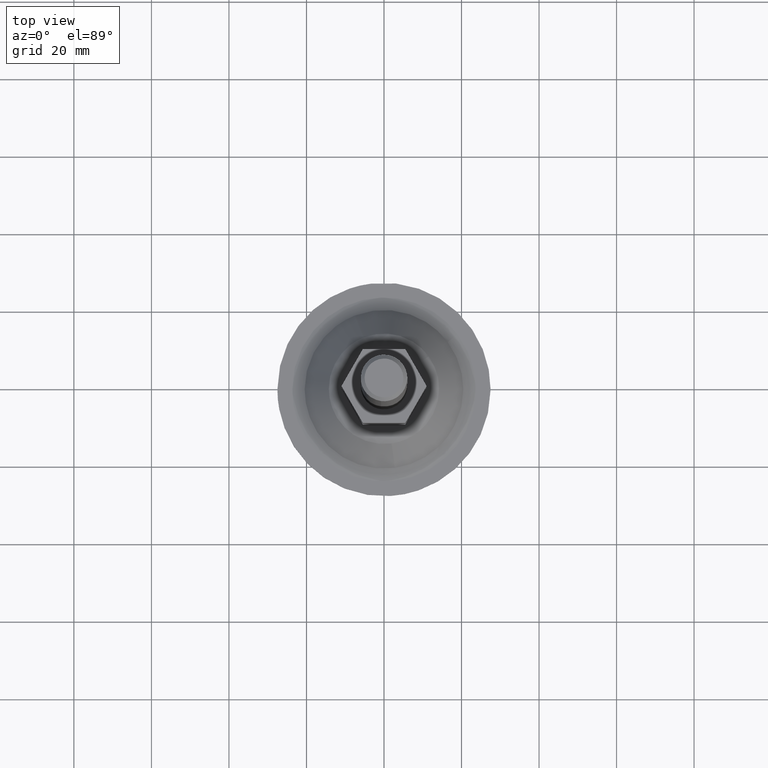
[diagram: clean part render]
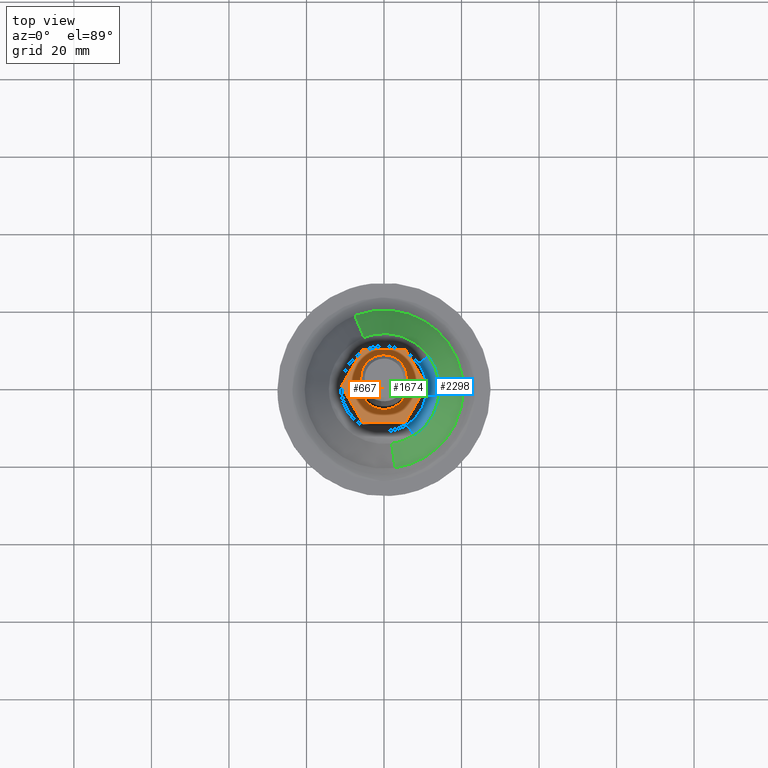
[diagram: same view with three faces highlighted in distinct colors, each labeled with its STEP entity id]
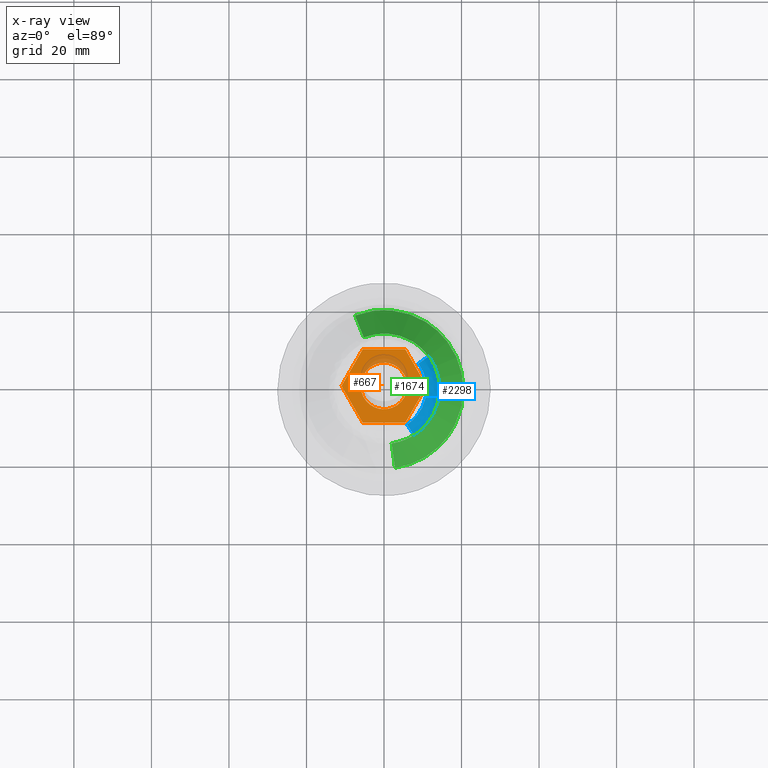
[diagram: x-ray of the same camera — body ghosted, the three highlighted faces saturated]
A machine part, top view with three faces highlighted in distinct colors.
The next image is the same camera in x-ray (body ghosted, the three faces saturated) — at least one of them is partly hidden behind the body in this view.
Their STEP definitions:

[orange] entity #667 — the highlighted face is a freeform B-spline surface patch.
#96=CARTESIAN_POINT('',(0.470754574464630,5.981504002391089,52.0));
#97=VERTEX_POINT('',#96);
#103=CARTESIAN_POINT('',(-6.0,0.0,52.0));
#104=VERTEX_POINT('',#103);
#105=CARTESIAN_POINT('',(0.470754574464630,5.981504002391089,52.0));
#106=CARTESIAN_POINT('',(0.235740642144029,6.0,52.0));
#107=CARTESIAN_POINT('',(0.0,6.0,52.0));
#108=CARTESIAN_POINT('',(-6.0,6.0,52.000000000000007));
#109=CARTESIAN_POINT('',(-6.0,0.0,52.0));
#117=(BOUNDED_CURVE()B_SPLINE_CURVE(2,(#105,#106,#107,#108,#109),.UNSPECIFIED.,.F.,.U.)B_SPLINE_CURVE_WITH_KNOTS((3,2,3),(0.736331300627175,0.750000000000000,1.0),.UNSPECIFIED.)CURVE()GEOMETRIC_REPRESENTATION_ITEM()RATIONAL_B_SPLINE_CURVE((0.969723356160146,0.983986122574799,1.0,0.707106781186548,1.0))REPRESENTATION_ITEM(''));
#118=EDGE_CURVE('',#97,#104,#117,.T.);
#120=CARTESIAN_POINT('',(-0.470754574464631,-5.981504002391089,52.0));
#121=VERTEX_POINT('',#120);
#122=CARTESIAN_POINT('',(-6.0,0.0,52.0));
#123=CARTESIAN_POINT('',(-6.0,-5.546342949767760,51.999999999999993));
#124=CARTESIAN_POINT('',(-0.470754574464631,-5.981504002391089,51.999999999999993));
#132=(BOUNDED_CURVE()B_SPLINE_CURVE(2,(#122,#123,#124),.UNSPECIFIED.,.F.,.U.)B_SPLINE_CURVE_WITH_KNOTS((3,3),(0.0,0.236331300627175),.UNSPECIFIED.)CURVE()GEOMETRIC_REPRESENTATION_ITEM()RATIONAL_B_SPLINE_CURVE((1.0,0.723120658611748,0.969723356160145))REPRESENTATION_ITEM(''));
#133=EDGE_CURVE('',#104,#121,#132,.T.);
#179=CARTESIAN_POINT('',(6.0,0.0,52.0));
#180=VERTEX_POINT('',#179);
#181=CARTESIAN_POINT('',(-0.470754574464631,-5.981504002391089,51.999999999999993));
#182=CARTESIAN_POINT('',(-0.235740642144030,-5.999999999999999,52.0));
#183=CARTESIAN_POINT('',(0.0,-6.0,52.0));
#184=CARTESIAN_POINT('',(6.0,-6.0,52.000000000000007));
#185=CARTESIAN_POINT('',(6.0,0.0,52.0));
#193=(BOUNDED_CURVE()B_SPLINE_CURVE(2,(#181,#182,#183,#184,#185),.UNSPECIFIED.,.F.,.U.)B_SPLINE_CURVE_WITH_KNOTS((3,2,3),(0.236331300627175,0.250000000000000,0.500000000000000),.UNSPECIFIED.)CURVE()GEOMETRIC_REPRESENTATION_ITEM()RATIONAL_B_SPLINE_CURVE((0.969723356160145,0.983986122574799,1.0,0.707106781186548,1.0))REPRESENTATION_ITEM(''));
#194=EDGE_CURVE('',#121,#180,#193,.T.);
#196=CARTESIAN_POINT('',(6.0,0.0,52.0));
#197=CARTESIAN_POINT('',(6.0,5.546342949767761,51.999999999999993));
#198=CARTESIAN_POINT('',(0.470754574464630,5.981504002391089,52.0));
#206=(BOUNDED_CURVE()B_SPLINE_CURVE(2,(#196,#197,#198),.UNSPECIFIED.,.F.,.U.)B_SPLINE_CURVE_WITH_KNOTS((3,3),(0.500000000000000,0.736331300627175),.UNSPECIFIED.)CURVE()GEOMETRIC_REPRESENTATION_ITEM()RATIONAL_B_SPLINE_CURVE((1.0,0.723120658611748,0.969723356160146))REPRESENTATION_ITEM(''));
#207=EDGE_CURVE('',#180,#97,#206,.T.);
#612=CARTESIAN_POINT('',(-12.065523697927929,10.449049963174311,52.0));
#613=CARTESIAN_POINT('',(12.065524090233341,10.449049963174311,52.0));
#614=CARTESIAN_POINT('',(-12.065523697927929,-10.449050472794029,52.0));
#615=CARTESIAN_POINT('',(12.065524090233341,-10.449050472794029,52.0));
#616=B_SPLINE_SURFACE_WITH_KNOTS('',1,1,((#612,#614),(#613,#615)),.UNSPECIFIED.,.F.,.F.,.U.,(2,2),(2,2),(0.0,24.131047788161268),(0.0,20.898100435968342),.UNSPECIFIED.);
#617=CARTESIAN_POINT('',(10.969654999999999,0.0,52.0));
#618=VERTEX_POINT('',#617);
#619=CARTESIAN_POINT('',(5.484827999999999,9.500000000000000,52.0));
#620=VERTEX_POINT('',#619);
#621=CARTESIAN_POINT('',(10.969654999999999,0.0,52.0));
#622=CARTESIAN_POINT('',(5.484827999999999,9.500000000000000,52.0));
#623=QUASI_UNIFORM_CURVE('',1,(#621,#622),.UNSPECIFIED.,.F.,.U.);
#624=EDGE_CURVE('',#618,#620,#623,.T.);
#625=ORIENTED_EDGE('',*,*,#624,.T.);
#626=CARTESIAN_POINT('',(-5.484827000000000,9.500000000000000,52.0));
#627=VERTEX_POINT('',#626);
#628=CARTESIAN_POINT('',(5.484827999999999,9.500000000000000,52.0));
#629=CARTESIAN_POINT('',(-5.484827000000000,9.500000000000000,52.0));
#630=QUASI_UNIFORM_CURVE('',1,(#628,#629),.UNSPECIFIED.,.F.,.U.);
#631=EDGE_CURVE('',#620,#627,#630,.T.);
#632=ORIENTED_EDGE('',*,*,#631,.T.);
#633=CARTESIAN_POINT('',(-10.969655000000021,0.0,52.0));
#634=VERTEX_POINT('',#633);
#635=CARTESIAN_POINT('',(-5.484827000000000,9.500000000000000,52.0));
#636=CARTESIAN_POINT('',(-10.969655000000021,0.0,52.0));
#637=QUASI_UNIFORM_CURVE('',1,(#635,#636),.UNSPECIFIED.,.F.,.U.);
#638=EDGE_CURVE('',#627,#634,#637,.T.);
#639=ORIENTED_EDGE('',*,*,#638,.T.);
#640=CARTESIAN_POINT('',(-5.484827000000000,-9.500000000000000,52.0));
#641=VERTEX_POINT('',#640);
#642=CARTESIAN_POINT('',(-10.969655000000021,0.0,52.0));
#643=CARTESIAN_POINT('',(-5.484827000000000,-9.500000000000000,52.0));
#644=QUASI_UNIFORM_CURVE('',1,(#642,#643),.UNSPECIFIED.,.F.,.U.);
#645=EDGE_CURVE('',#634,#641,#644,.T.);
#646=ORIENTED_EDGE('',*,*,#645,.T.);
#647=CARTESIAN_POINT('',(5.484827999999999,-9.500000000000000,52.0));
#648=VERTEX_POINT('',#647);
#649=CARTESIAN_POINT('',(-5.484827000000000,-9.500000000000000,52.0));
#650=CARTESIAN_POINT('',(5.484827999999999,-9.500000000000000,52.0));
#651=QUASI_UNIFORM_CURVE('',1,(#649,#650),.UNSPECIFIED.,.F.,.U.);
#652=EDGE_CURVE('',#641,#648,#651,.T.);
#653=ORIENTED_EDGE('',*,*,#652,.T.);
#654=CARTESIAN_POINT('',(5.484827999999999,-9.500000000000000,52.0));
#655=CARTESIAN_POINT('',(10.969654999999999,0.0,52.0));
#656=QUASI_UNIFORM_CURVE('',1,(#654,#655),.UNSPECIFIED.,.F.,.U.);
#657=EDGE_CURVE('',#648,#618,#656,.T.);
#658=ORIENTED_EDGE('',*,*,#657,.T.);
#659=EDGE_LOOP('',(#625,#632,#639,#646,#653,#658));
#660=FACE_OUTER_BOUND('',#659,.T.);
#661=ORIENTED_EDGE('',*,*,#207,.F.);
#662=ORIENTED_EDGE('',*,*,#194,.F.);
#663=ORIENTED_EDGE('',*,*,#133,.F.);
#664=ORIENTED_EDGE('',*,*,#118,.F.);
#665=EDGE_LOOP('',(#661,#662,#663,#664));
#666=FACE_BOUND('',#665,.T.);
#667=ADVANCED_FACE('',(#660,#666),#616,.F.);

[blue] entity #2298 — the highlighted face is a freeform B-spline surface patch.
#1611=CARTESIAN_POINT('',(11.528268955337561,8.375777670429381,12.332229066750109));
#1612=VERTEX_POINT('',#1611);
#1628=CARTESIAN_POINT('',(14.249724000000020,0.0,12.332229000000099));
#1629=VERTEX_POINT('',#1628);
#1630=CARTESIAN_POINT('',(11.528268955337555,8.375777670429381,12.332229066750116));
#1631=CARTESIAN_POINT('',(14.249724000000015,4.630015993565686,12.332229000000101));
#1632=CARTESIAN_POINT('',(14.249724000000020,0.0,12.332229000000099));
#1640=(BOUNDED_CURVE()B_SPLINE_CURVE(2,(#1630,#1631,#1632),.UNSPECIFIED.,.F.,.U.)B_SPLINE_CURVE_WITH_KNOTS((3,3),(0.398750340998140,0.500000000000000),.UNSPECIFIED.)CURVE()GEOMETRIC_REPRESENTATION_ITEM()RATIONAL_B_SPLINE_CURVE((0.858840265005532,0.881378645884723,1.0))REPRESENTATION_ITEM(''));
#1641=EDGE_CURVE('',#1612,#1629,#1640,.T.);
#1643=CARTESIAN_POINT('',(7.702739952474362,-11.988429236055140,12.332228986944321));
#1644=VERTEX_POINT('',#1643);
#1645=CARTESIAN_POINT('',(14.249724000000020,0.0,12.332229000000099));
#1646=CARTESIAN_POINT('',(14.249724000000018,-7.781896655416245,12.332229000000103));
#1647=CARTESIAN_POINT('',(7.702739952474362,-11.988429236055143,12.332228986944319));
#1655=(BOUNDED_CURVE()B_SPLINE_CURVE(2,(#1645,#1646,#1647),.UNSPECIFIED.,.F.,.U.)B_SPLINE_CURVE_WITH_KNOTS((3,3),(0.500000000000000,0.657460172696859),.UNSPECIFIED.)CURVE()GEOMETRIC_REPRESENTATION_ITEM()RATIONAL_B_SPLINE_CURVE((1.0,0.815523932735579,0.863428932750304))REPRESENTATION_ITEM(''));
#1656=EDGE_CURVE('',#1629,#1644,#1655,.T.);
#2172=CARTESIAN_POINT('',(5.946089770303521,-9.254405253330152,14.0));
#2173=VERTEX_POINT('',#2172);
#2191=CARTESIAN_POINT('',(8.899186944773383,6.465637780732381,14.0));
#2192=VERTEX_POINT('',#2191);
#2208=CARTESIAN_POINT('',(8.899186944773383,6.465637780732382,14.000000000000002));
#2209=CARTESIAN_POINT('',(10.559949392666903,7.672252327356890,13.999999991151485));
#2210=CARTESIAN_POINT('',(11.528268955337554,8.375777670429381,12.332229066750111));
#2218=(BOUNDED_CURVE()B_SPLINE_CURVE(2,(#2208,#2209,#2210),.UNSPECIFIED.,.F.,.U.)B_SPLINE_CURVE_WITH_KNOTS((3,3),(-1.618740150428296,-0.390319360491245),.UNSPECIFIED.)CURVE()GEOMETRIC_REPRESENTATION_ITEM()RATIONAL_B_SPLINE_CURVE((0.917291947666308,0.815431626945771,0.915800522409361))REPRESENTATION_ITEM(''));
#2219=EDGE_CURVE('',#2192,#1612,#2218,.T.);
#2225=CARTESIAN_POINT('',(5.946089770303521,-9.254405253330152,13.999999999999998));
#2226=CARTESIAN_POINT('',(7.055746557749987,-10.981458494557286,13.999999993031022));
#2227=CARTESIAN_POINT('',(7.702739952474363,-11.988429236055143,12.332228986944319));
#2235=(BOUNDED_CURVE()B_SPLINE_CURVE(2,(#2225,#2226,#2227),.UNSPECIFIED.,.F.,.U.)B_SPLINE_CURVE_WITH_KNOTS((3,3),(-1.618740151660973,-0.390319294473830),.UNSPECIFIED.)CURVE()GEOMETRIC_REPRESENTATION_ITEM()RATIONAL_B_SPLINE_CURVE((0.896658200066304,0.797089140041838,0.895200333571680))REPRESENTATION_ITEM(''));
#2236=EDGE_CURVE('',#2173,#1644,#2235,.T.);
#2241=CARTESIAN_POINT('',(8.752588906192633,6.359128070496875,13.995893479540475));
#2242=CARTESIAN_POINT('',(15.111716976689509,-2.393460835695761,13.995893479540477));
#2243=CARTESIAN_POINT('',(6.359128070496875,-8.752588906192633,13.995893479540475));
#2244=CARTESIAN_POINT('',(6.108632978091093,-8.934584243882069,13.995893479540477));
#2245=CARTESIAN_POINT('',(5.848139178864972,-9.101955313140811,13.995893479540486));
#2246=CARTESIAN_POINT('',(10.601433560269035,7.702392339358740,14.099526789685839));
#2247=CARTESIAN_POINT('',(18.303825899627778,-2.899041220910297,14.099526789685839));
#2248=CARTESIAN_POINT('',(7.702392339358740,-10.601433560269035,14.099526789685839));
#2249=CARTESIAN_POINT('',(7.398984158330787,-10.821872507130594,14.099526789685843));
#2250=CARTESIAN_POINT('',(7.083465203315789,-11.024598042360788,14.099526789685848));
#2251=CARTESIAN_POINT('',(11.611181162287151,8.436016914776335,12.182359588724589));
#2252=CARTESIAN_POINT('',(20.047198077063484,-3.175164247510819,12.182359588724589));
#2253=CARTESIAN_POINT('',(8.436016914776335,-11.611181162287151,12.182359588724589));
#2254=CARTESIAN_POINT('',(8.103710219082043,-11.852616109049999,12.182359588724594));
#2255=CARTESIAN_POINT('',(7.758139242667631,-12.074650506794182,12.182359588724596));
#2263=(BOUNDED_SURFACE()B_SPLINE_SURFACE(2,2,((#2241,#2246,#2251),(#2242,#2247,#2252),(#2243,#2248,#2253),(#2244,#2249,#2254),(#2245,#2250,#2255)),.UNSPECIFIED.,.F.,.F.,.U.)B_SPLINE_SURFACE_WITH_KNOTS((3,2,3),(3,3),(0.0,23.779518828556629,24.730698674582239),(0.0,4.252147818302703),.UNSPECIFIED.)GEOMETRIC_REPRESENTATION_ITEM()RATIONAL_B_SPLINE_SURFACE(((0.927972367260647,0.804825693950045,0.926331968535603),(0.656175553643737,0.569097705865245,0.655015616581409),(0.927972367260647,0.804825693950045,0.926331968535603),(0.917100505084196,0.795396583418962,0.915479324807333),(0.907098391052404,0.786721801010981,0.905494891749333)))REPRESENTATION_ITEM('')SURFACE());
#2264=CARTESIAN_POINT('',(11.0,0.0,14.0));
#2265=VERTEX_POINT('',#2264);
#2266=CARTESIAN_POINT('',(11.0,0.0,14.0));
#2267=CARTESIAN_POINT('',(11.0,-6.007194528031640,14.000000000000007));
#2268=CARTESIAN_POINT('',(5.946089770303521,-9.254405253330152,14.000000000000004));
#2276=(BOUNDED_CURVE()B_SPLINE_CURVE(2,(#2266,#2267,#2268),.UNSPECIFIED.,.F.,.U.)B_SPLINE_CURVE_WITH_KNOTS((3,3),(0.500000000000000,0.657460173940742),.UNSPECIFIED.)CURVE()GEOMETRIC_REPRESENTATION_ITEM()RATIONAL_B_SPLINE_CURVE((1.0,0.815523931278280,0.863428933507171))REPRESENTATION_ITEM(''));
#2277=EDGE_CURVE('',#2265,#2173,#2276,.T.);
#2278=ORIENTED_EDGE('',*,*,#2277,.T.);
#2279=ORIENTED_EDGE('',*,*,#2236,.T.);
#2280=ORIENTED_EDGE('',*,*,#1656,.F.);
#2281=ORIENTED_EDGE('',*,*,#1641,.F.);
#2282=ORIENTED_EDGE('',*,*,#2219,.F.);
#2283=CARTESIAN_POINT('',(8.899186944773385,6.465637780732381,14.000000000000005));
#2284=CARTESIAN_POINT('',(11.0,3.574116659174136,14.000000000000005));
#2285=CARTESIAN_POINT('',(11.0,0.0,14.0));
#2293=(BOUNDED_CURVE()B_SPLINE_CURVE(2,(#2283,#2284,#2285),.UNSPECIFIED.,.F.,.U.)B_SPLINE_CURVE_WITH_KNOTS((3,3),(0.398750340984453,0.500000000000000),.UNSPECIFIED.)CURVE()GEOMETRIC_REPRESENTATION_ITEM()RATIONAL_B_SPLINE_CURVE((0.858840264999438,0.881378645868688,1.0))REPRESENTATION_ITEM(''));
#2294=EDGE_CURVE('',#2192,#2265,#2293,.T.);
#2295=ORIENTED_EDGE('',*,*,#2294,.T.);
#2296=EDGE_LOOP('',(#2278,#2279,#2280,#2281,#2282,#2295));
#2297=FACE_OUTER_BOUND('',#2296,.T.);
#2298=ADVANCED_FACE('',(#2297),#2263,.T.);

[green] entity #1674 — the highlighted face is a freeform B-spline surface patch.
#1447=CARTESIAN_POINT('',(2.834919144728288,-20.270669623479929,3.667770001919007));
#1448=VERTEX_POINT('',#1447);
#1466=CARTESIAN_POINT('',(1.973662398174393,-14.112380770277900,12.332228997028521));
#1467=VERTEX_POINT('',#1466);
#1468=CARTESIAN_POINT('',(1.973662398174393,-14.112380770277900,12.332228997028521));
#1469=CARTESIAN_POINT('',(2.834919144728288,-20.270669623479929,3.667770001919007));
#1470=QUASI_UNIFORM_CURVE('',1,(#1468,#1469),.UNSPECIFIED.,.F.,.U.);
#1471=EDGE_CURVE('',#1467,#1448,#1470,.T.);
#1490=CARTESIAN_POINT('',(-5.222541326486425,13.258193548493990,12.332228999999630));
#1491=VERTEX_POINT('',#1490);
#1505=CARTESIAN_POINT('',(-7.501527317748746,19.043736538841600,3.667769999972017));
#1506=VERTEX_POINT('',#1505);
#1507=CARTESIAN_POINT('',(-5.222541326486425,13.258193548493990,12.332228999999630));
#1508=CARTESIAN_POINT('',(-7.501527317748746,19.043736538841600,3.667769999972017));
#1509=QUASI_UNIFORM_CURVE('',1,(#1507,#1508),.UNSPECIFIED.,.F.,.U.);
#1510=EDGE_CURVE('',#1491,#1506,#1509,.T.);
#1528=CARTESIAN_POINT('',(-5.165566658710585,13.113554928049350,12.548840543418860));
#1529=CARTESIAN_POINT('',(7.947988269338767,18.279121586759942,12.548840543418866));
#1530=CARTESIAN_POINT('',(13.113554928049350,5.165566658710585,12.548840543418860));
#1531=CARTESIAN_POINT('',(18.279121586759942,-7.947988269338767,12.548840543418866));
#1532=CARTESIAN_POINT('',(5.165566658710585,-13.113554928049350,12.548840543418860));
#1533=CARTESIAN_POINT('',(3.608991637364564,-13.726706135038100,12.548840543418864));
#1534=CARTESIAN_POINT('',(1.952130971688703,-13.958423493572745,12.548840543418864));
#1535=CARTESIAN_POINT('',(-7.559926333997070,19.191991079178869,3.445743236414634));
#1536=CARTESIAN_POINT('',(11.632064745181800,26.751917413175939,3.445743236414634));
#1537=CARTESIAN_POINT('',(19.191991079178869,7.559926333997070,3.445743236414634));
#1538=CARTESIAN_POINT('',(26.751917413175939,-11.632064745181800,3.445743236414634));
#1539=CARTESIAN_POINT('',(7.559926333997070,-19.191991079178869,3.445743236414634));
#1540=CARTESIAN_POINT('',(5.281842771785672,-20.089352058660143,3.445743236414634));
#1541=CARTESIAN_POINT('',(2.856988848531201,-20.428475774714858,3.445743236414634));
#1549=(BOUNDED_SURFACE()B_SPLINE_SURFACE(2,1,((#1528,#1535),(#1529,#1536),(#1530,#1537),(#1531,#1538),(#1532,#1539),(#1533,#1540),(#1534,#1541)),.UNSPECIFIED.,.F.,.F.,.U.)B_SPLINE_SURFACE_WITH_KNOTS((3,2,2,3),(2,2),(0.0,34.176409678854753,68.352819357709492,73.821044906326264),(0.0,11.204763490533120),.UNSPECIFIED.)GEOMETRIC_REPRESENTATION_ITEM()RATIONAL_B_SPLINE_SURFACE(((1.0,1.0),(0.707106781186548,0.707106781186548),(1.0,1.0),(0.707106781186548,0.707106781186548),(1.0,1.0),(0.953137084989848,0.953137084989848),(0.921270302782944,0.921270302782944)))REPRESENTATION_ITEM('')SURFACE());
#1550=CARTESIAN_POINT('',(14.050391367455120,-14.883659559734220,3.667770100837528));
#1551=VERTEX_POINT('',#1550);
#1552=CARTESIAN_POINT('',(14.050391367455122,-14.883659559734214,3.667770100837527));
#1553=CARTESIAN_POINT('',(9.301978442247718,-19.366230347768390,3.667770019894172));
#1554=CARTESIAN_POINT('',(2.834919144728289,-20.270669623479932,3.667770001919007));
#1562=(BOUNDED_CURVE()B_SPLINE_CURVE(2,(#1552,#1553,#1554),.UNSPECIFIED.,.F.,.U.)B_SPLINE_CURVE_WITH_KNOTS((3,3),(0.629344514439460,0.726086221407047),.UNSPECIFIED.)CURVE()GEOMETRIC_REPRESENTATION_ITEM()RATIONAL_B_SPLINE_CURVE((0.853730296276482,0.857669553011450,0.949326419167405))REPRESENTATION_ITEM(''));
#1563=EDGE_CURVE('',#1551,#1448,#1562,.T.);
#1564=ORIENTED_EDGE('',*,*,#1563,.F.);
#1565=CARTESIAN_POINT('',(20.467946000000001,0.0,3.667770000000105));
#1566=VERTEX_POINT('',#1565);
#1567=CARTESIAN_POINT('',(20.467946000000001,0.0,3.667770000000105));
#1568=CARTESIAN_POINT('',(20.467945999999994,-8.825394329164986,3.667770000000104));
#1569=CARTESIAN_POINT('',(14.050391367455122,-14.883659559734214,3.667770100837527));
#1577=(BOUNDED_CURVE()B_SPLINE_CURVE(2,(#1567,#1568,#1569),.UNSPECIFIED.,.F.,.U.)B_SPLINE_CURVE_WITH_KNOTS((3,3),(0.500000000000000,0.629344514439460),.UNSPECIFIED.)CURVE()GEOMETRIC_REPRESENTATION_ITEM()RATIONAL_B_SPLINE_CURVE((1.0,0.848463475319854,0.853730296276482))REPRESENTATION_ITEM(''));
#1578=EDGE_CURVE('',#1566,#1551,#1577,.T.);
#1579=ORIENTED_EDGE('',*,*,#1578,.F.);
#1580=CARTESIAN_POINT('',(16.406429878249330,12.237886993304681,3.667770102808944));
#1581=VERTEX_POINT('',#1580);
#1582=CARTESIAN_POINT('',(16.406429878249330,12.237886993304684,3.667770102808944));
#1583=CARTESIAN_POINT('',(20.467946000000001,6.792912508484252,3.667770000000105));
#1584=CARTESIAN_POINT('',(20.467946000000001,0.0,3.667770000000105));
#1592=(BOUNDED_CURVE()B_SPLINE_CURVE(2,(#1582,#1583,#1584),.UNSPECIFIED.,.F.,.U.)B_SPLINE_CURVE_WITH_KNOTS((3,3),(0.396843395504513,0.500000000000000),.UNSPECIFIED.)CURVE()GEOMETRIC_REPRESENTATION_ITEM()RATIONAL_B_SPLINE_CURVE((0.858025367928728,0.879144520269803,1.0))REPRESENTATION_ITEM(''));
#1593=EDGE_CURVE('',#1581,#1566,#1592,.T.);
#1594=ORIENTED_EDGE('',*,*,#1593,.F.);
#1595=CARTESIAN_POINT('',(-7.501527317748746,19.043736538841596,3.667769999972017));
#1596=CARTESIAN_POINT('',(-3.885960966377825,20.467946000000005,3.667770000000105));
#1597=CARTESIAN_POINT('',(0.0,20.467946000000001,3.667770000000105));
#1598=CARTESIAN_POINT('',(10.267462668698581,20.467946000000001,3.667770000000105));
#1599=CARTESIAN_POINT('',(16.406429878249330,12.237886993304684,3.667770102808944));
#1607=(BOUNDED_CURVE()B_SPLINE_CURVE(2,(#1595,#1596,#1597,#1598,#1599),.UNSPECIFIED.,.F.,.U.)B_SPLINE_CURVE_WITH_KNOTS((3,2,3),(0.187769642889080,0.250000000000000,0.396843395504514),.UNSPECIFIED.)CURVE()GEOMETRIC_REPRESENTATION_ITEM()RATIONAL_B_SPLINE_CURVE((0.890481630694895,0.927092601591488,1.0,0.827962260916745,0.858025367928728))REPRESENTATION_ITEM(''));
#1608=EDGE_CURVE('',#1506,#1581,#1607,.T.);
#1609=ORIENTED_EDGE('',*,*,#1608,.F.);
#1610=ORIENTED_EDGE('',*,*,#1510,.F.);
#1611=CARTESIAN_POINT('',(11.528268955337561,8.375777670429381,12.332229066750109));
#1612=VERTEX_POINT('',#1611);
#1613=CARTESIAN_POINT('',(-5.222541326486425,13.258193548493987,12.332228999999630));
#1614=CARTESIAN_POINT('',(-2.705394632286684,14.249724000000024,12.332229000000099));
#1615=CARTESIAN_POINT('',(0.0,14.249724000000020,12.332229000000099));
#1616=CARTESIAN_POINT('',(7.260597026177074,14.249724000000024,12.332229000000099));
#1617=CARTESIAN_POINT('',(11.528268955337555,8.375777670429381,12.332229066750116));
#1625=(BOUNDED_CURVE()B_SPLINE_CURVE(2,(#1613,#1614,#1615,#1616,#1617),.UNSPECIFIED.,.F.,.U.)B_SPLINE_CURVE_WITH_KNOTS((3,2,3),(0.187769642892543,0.250000000000000,0.398750340998140),.UNSPECIFIED.)CURVE()GEOMETRIC_REPRESENTATION_ITEM()RATIONAL_B_SPLINE_CURVE((0.890481630698969,0.927092601595545,1.0,0.825728135301825,0.858840265005532))REPRESENTATION_ITEM(''));
#1626=EDGE_CURVE('',#1491,#1612,#1625,.T.);
#1627=ORIENTED_EDGE('',*,*,#1626,.T.);
#1628=CARTESIAN_POINT('',(14.249724000000020,0.0,12.332229000000099));
#1629=VERTEX_POINT('',#1628);
#1630=CARTESIAN_POINT('',(11.528268955337555,8.375777670429381,12.332229066750116));
#1631=CARTESIAN_POINT('',(14.249724000000015,4.630015993565686,12.332229000000101));
#1632=CARTESIAN_POINT('',(14.249724000000020,0.0,12.332229000000099));
#1640=(BOUNDED_CURVE()B_SPLINE_CURVE(2,(#1630,#1631,#1632),.UNSPECIFIED.,.F.,.U.)B_SPLINE_CURVE_WITH_KNOTS((3,3),(0.398750340998140,0.500000000000000),.UNSPECIFIED.)CURVE()GEOMETRIC_REPRESENTATION_ITEM()RATIONAL_B_SPLINE_CURVE((0.858840265005532,0.881378645884723,1.0))REPRESENTATION_ITEM(''));
#1641=EDGE_CURVE('',#1612,#1629,#1640,.T.);
#1642=ORIENTED_EDGE('',*,*,#1641,.T.);
#1643=CARTESIAN_POINT('',(7.702739952474362,-11.988429236055140,12.332228986944321));
#1644=VERTEX_POINT('',#1643);
#1645=CARTESIAN_POINT('',(14.249724000000020,0.0,12.332229000000099));
#1646=CARTESIAN_POINT('',(14.249724000000018,-7.781896655416245,12.332229000000103));
#1647=CARTESIAN_POINT('',(7.702739952474362,-11.988429236055143,12.332228986944319));
#1655=(BOUNDED_CURVE()B_SPLINE_CURVE(2,(#1645,#1646,#1647),.UNSPECIFIED.,.F.,.U.)B_SPLINE_CURVE_WITH_KNOTS((3,3),(0.500000000000000,0.657460172696859),.UNSPECIFIED.)CURVE()GEOMETRIC_REPRESENTATION_ITEM()RATIONAL_B_SPLINE_CURVE((1.0,0.815523932735579,0.863428932750304))REPRESENTATION_ITEM(''));
#1656=EDGE_CURVE('',#1629,#1644,#1655,.T.);
#1657=ORIENTED_EDGE('',*,*,#1656,.T.);
#1658=CARTESIAN_POINT('',(7.702739952474362,-11.988429236055143,12.332228986944319));
#1659=CARTESIAN_POINT('',(5.071302820362800,-13.679165705940784,12.332228996705934));
#1660=CARTESIAN_POINT('',(1.973662398174393,-14.112380770277900,12.332228997028528));
#1668=(BOUNDED_CURVE()B_SPLINE_CURVE(2,(#1658,#1659,#1660),.UNSPECIFIED.,.F.,.U.)B_SPLINE_CURVE_WITH_KNOTS((3,3),(0.657460172696859,0.726086221390818),.UNSPECIFIED.)CURVE()GEOMETRIC_REPRESENTATION_ITEM()RATIONAL_B_SPLINE_CURVE((0.863428932750304,0.884307424164279,0.949326419136652))REPRESENTATION_ITEM(''));
#1669=EDGE_CURVE('',#1644,#1467,#1668,.T.);
#1670=ORIENTED_EDGE('',*,*,#1669,.T.);
#1671=ORIENTED_EDGE('',*,*,#1471,.T.);
#1672=EDGE_LOOP('',(#1564,#1579,#1594,#1609,#1610,#1627,#1642,#1657,#1670,#1671));
#1673=FACE_OUTER_BOUND('',#1672,.T.);
#1674=ADVANCED_FACE('',(#1673),#1549,.T.);